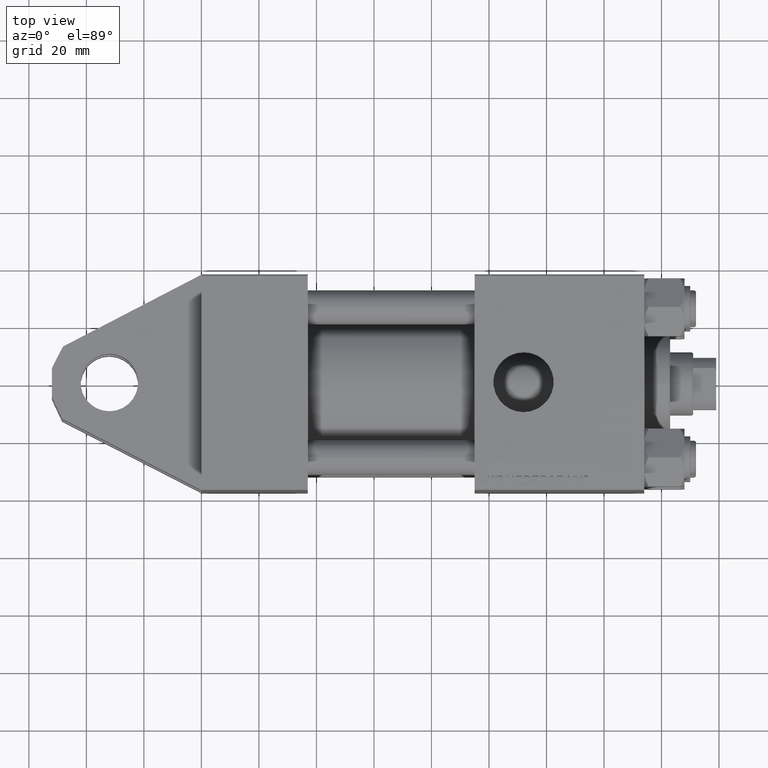
[diagram: clean part render]
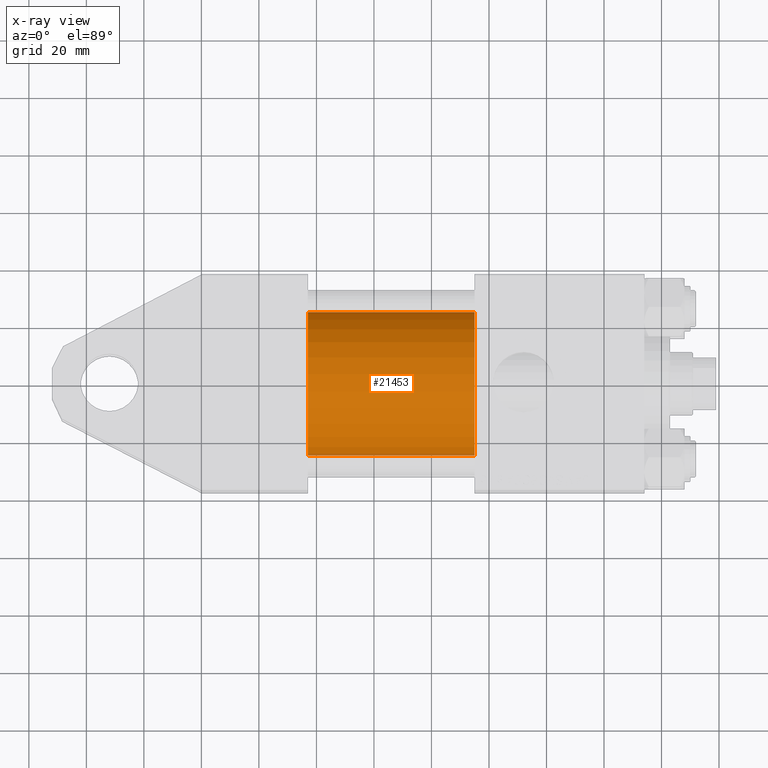
[diagram: x-ray — body ghosted, one internal face saturated and labeled with its STEP entity id]
A machine part, top view, then the same camera in x-ray: the body is ghosted and one INTERNAL B-rep face — a face not visible from any outside direction — is saturated and labeled: STEP entity #21453.
In plain terms, the highlighted cylindrical surface (partial cylindrical patch) has radius 25 mm, axis along (-1, -0, 0).
Its self-contained STEP definition (entity closure, byte-faithful):
#1462 = EDGE_CURVE ( 'NONE', #45464, #2532, #43457, .T. ) ;
#1922 = DIRECTION ( 'NONE',  ( 1.000000000000000000, 0.000000000000000000, 0.000000000000000000 ) ) ;
#2532 = VERTEX_POINT ( 'NONE', #32577 ) ;
#9203 = CARTESIAN_POINT ( 'NONE',  ( 95.00000000000000000, -3.469446951953614189E-15, 0.000000000000000000 ) ) ;
#9437 = VECTOR ( 'NONE', #35399, 1000.000000000000000 ) ;
#9674 = DIRECTION ( 'NONE',  ( -1.000000000000000000, -0.000000000000000000, -0.000000000000000000 ) ) ;
#12784 = CARTESIAN_POINT ( 'NONE',  ( 95.00000000000000000, -4.078299540852317872E-16, -25.00000000000000000 ) ) ;
#13566 = ORIENTED_EDGE ( 'NONE', *, *, #36068, .T. ) ;
#13820 = VERTEX_POINT ( 'NONE', #22715 ) ;
#14511 = DIRECTION ( 'NONE',  ( 0.000000000000000000, 0.000000000000000000, -1.000000000000000000 ) ) ;
#15560 = ORIENTED_EDGE ( 'NONE', *, *, #37213, .F. ) ;
#16256 = AXIS2_PLACEMENT_3D ( 'NONE', #9203, #1922, #24033 ) ;
#17048 = CARTESIAN_POINT ( 'NONE',  ( 95.00000000000000000, -3.469446951953614189E-15, 25.00000000000000000 ) ) ;
#19132 = ORIENTED_EDGE ( 'NONE', *, *, #23769, .T. ) ;
#20323 = LINE ( 'NONE', #12784, #9437 ) ;
#21453 = ADVANCED_FACE ( 'NONE', ( #28771 ), #25240, .F. ) ;
#22635 = VECTOR ( 'NONE', #47476, 1000.000000000000000 ) ;
#22715 = CARTESIAN_POINT ( 'NONE',  ( 37.00000000000000000, -4.078299540852317872E-16, -25.00000000000000000 ) ) ;
#23769 = EDGE_CURVE ( 'NONE', #24371, #13820, #20323, .T. ) ;
#24033 = DIRECTION ( 'NONE',  ( 0.000000000000000000, 0.000000000000000000, -1.000000000000000000 ) ) ;
#24291 = CIRCLE ( 'NONE', #16256, 25.00000000000000000 ) ;
#24371 = VERTEX_POINT ( 'NONE', #25458 ) ;
#24989 = DIRECTION ( 'NONE',  ( 0.000000000000000000, 0.000000000000000000, 1.000000000000000000 ) ) ;
#25240 = CYLINDRICAL_SURFACE ( 'NONE', #35982, 25.00000000000000000 ) ;
#25458 = CARTESIAN_POINT ( 'NONE',  ( 95.00000000000000000, -4.078299540852317872E-16, -25.00000000000000000 ) ) ;
#25829 = ORIENTED_EDGE ( 'NONE', *, *, #1462, .F. ) ;
#26824 = DIRECTION ( 'NONE',  ( 1.000000000000000000, 0.000000000000000000, 0.000000000000000000 ) ) ;
#28771 = FACE_OUTER_BOUND ( 'NONE', #45767, .T. ) ;
#30347 = CARTESIAN_POINT ( 'NONE',  ( 37.00000000000000000, -3.469446951953614189E-15, 0.000000000000000000 ) ) ;
#32577 = CARTESIAN_POINT ( 'NONE',  ( 37.00000000000000000, -3.469446951953614189E-15, 25.00000000000000000 ) ) ;
#35399 = DIRECTION ( 'NONE',  ( -1.000000000000000000, -0.000000000000000000, -0.000000000000000000 ) ) ;
#35982 = AXIS2_PLACEMENT_3D ( 'NONE', #44113, #9674, #24989 ) ;
#36068 = EDGE_CURVE ( 'NONE', #45464, #24371, #24291, .T. ) ;
#37213 = EDGE_CURVE ( 'NONE', #2532, #13820, #47603, .T. ) ;
#37478 = CARTESIAN_POINT ( 'NONE',  ( 95.00000000000000000, -3.469446951953614189E-15, 25.00000000000000000 ) ) ;
#43457 = LINE ( 'NONE', #17048, #22635 ) ;
#44113 = CARTESIAN_POINT ( 'NONE',  ( 95.00000000000000000, -3.469446951953614189E-15, 0.000000000000000000 ) ) ;
#44391 = AXIS2_PLACEMENT_3D ( 'NONE', #30347, #26824, #14511 ) ;
#45464 = VERTEX_POINT ( 'NONE', #37478 ) ;
#45767 = EDGE_LOOP ( 'NONE', ( #13566, #19132, #15560, #25829 ) ) ;
#47476 = DIRECTION ( 'NONE',  ( -1.000000000000000000, -0.000000000000000000, -0.000000000000000000 ) ) ;
#47603 = CIRCLE ( 'NONE', #44391, 25.00000000000000000 ) ;